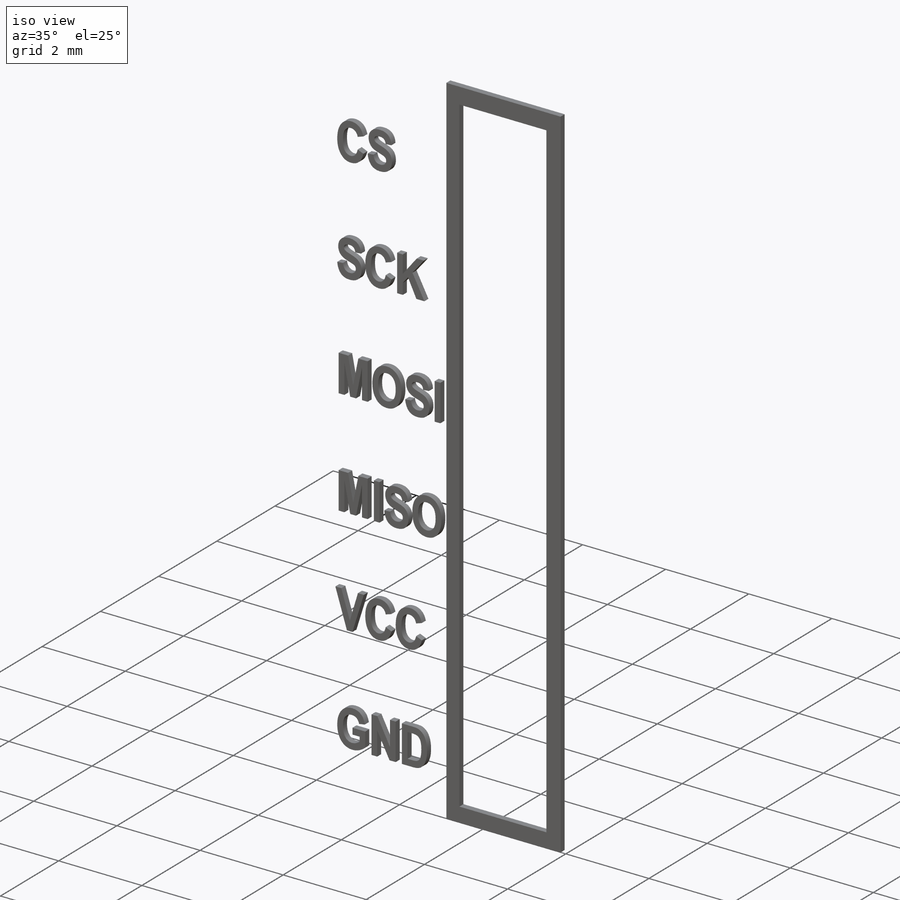
[diagram: iso view]
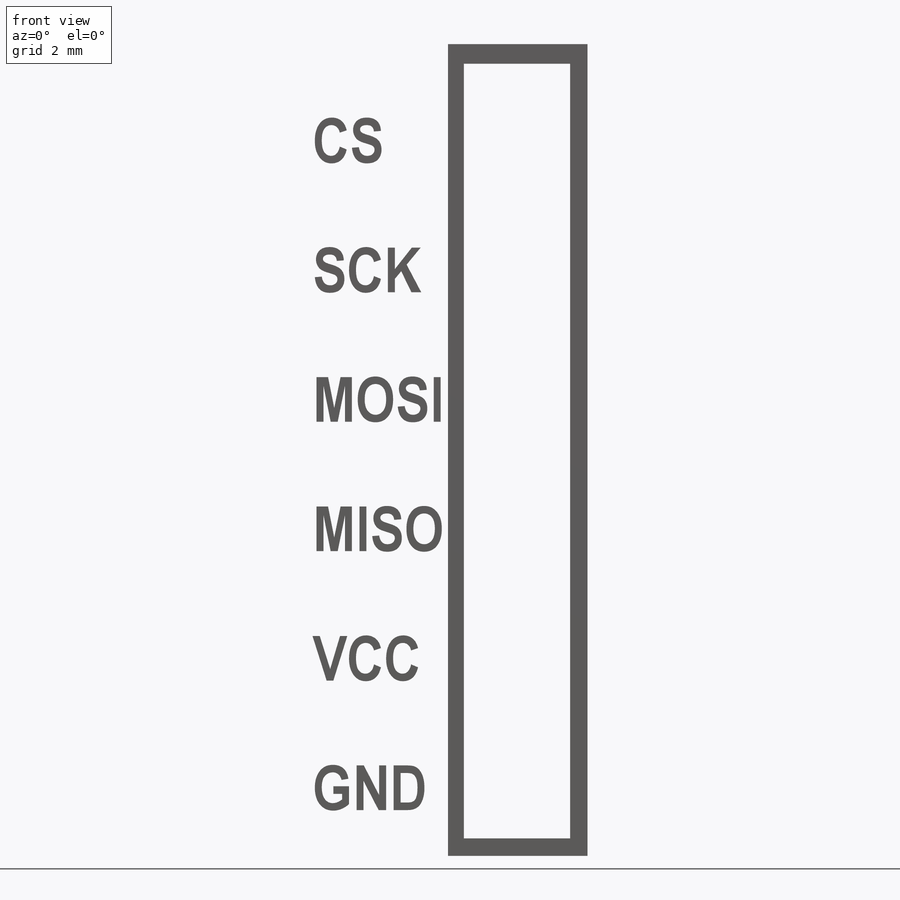
[diagram: front view]
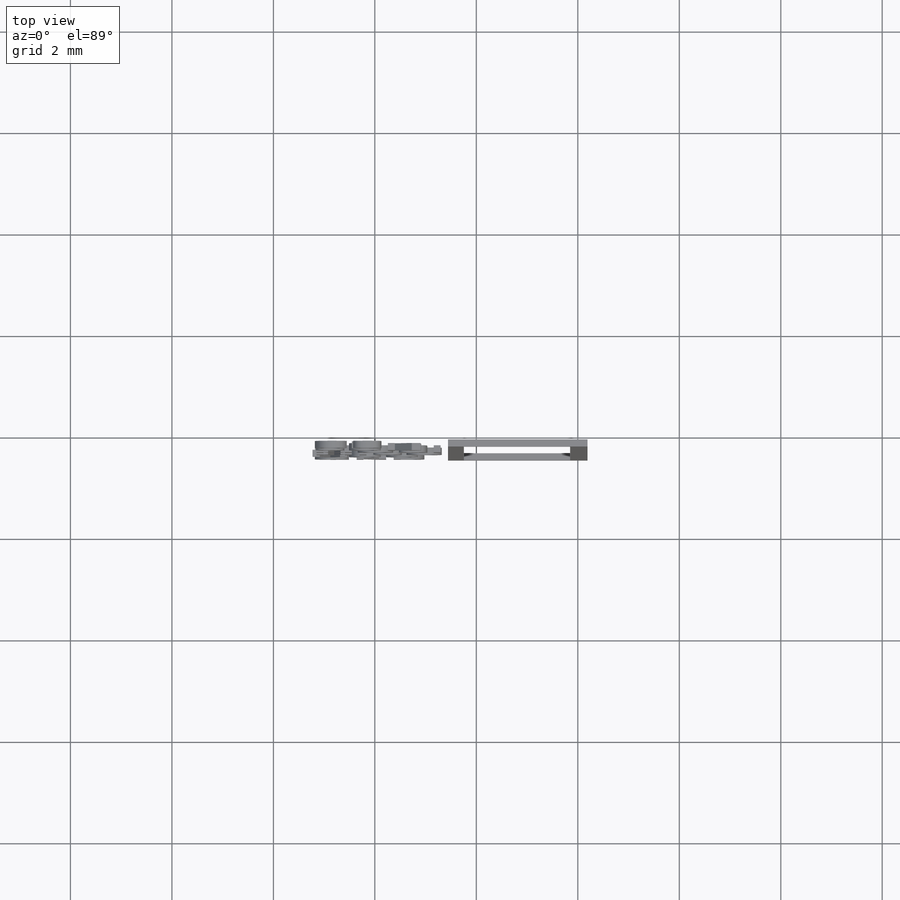
[diagram: top view]
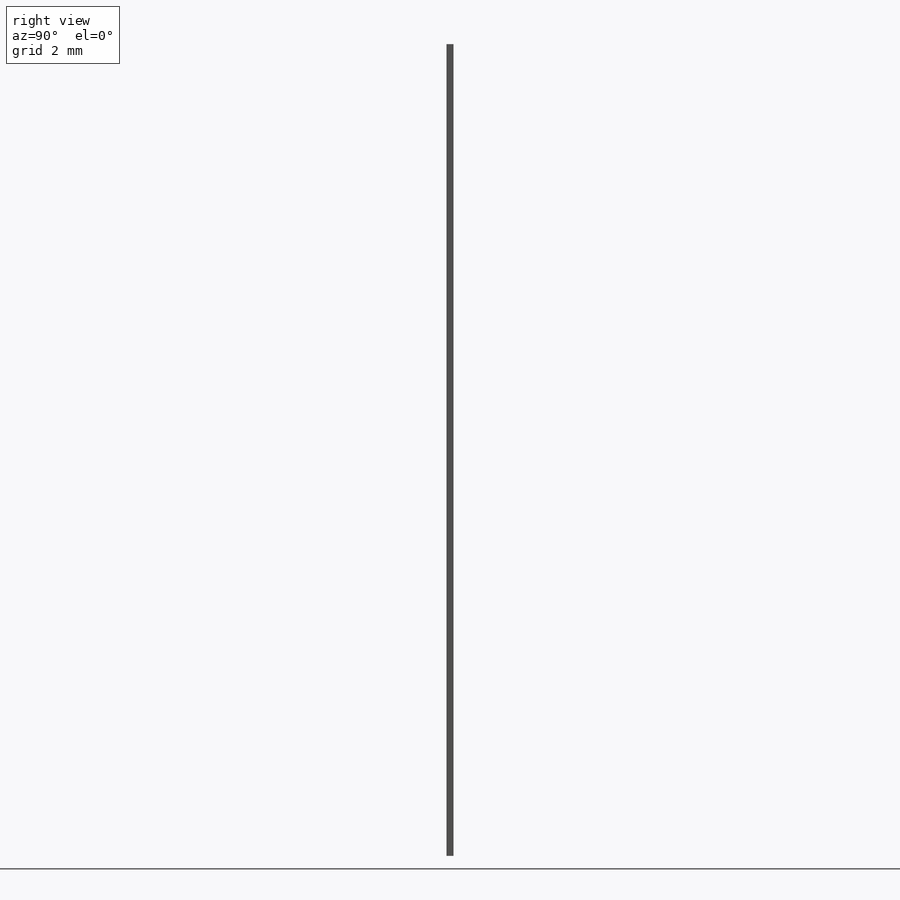
[diagram: right view]
SOLIDWORKS PART (.sldprt)
format: sldprt  version: not decoded by parser v0  size: 811,520 bytes
history: native  units: mm
features: sketch x7, extrude x5, plane x3, cut_extrude x2, material x1 (+8 scaffold rows collapsed)
feature tree (26):
  scaffold x8  (default folders/planes/origin — collapsed)
  material  "Matériau <non spécifié>"
  plane  "Plan de face"
  plane  "Plan de dessus"
  plane  "Plan de droite"
  sketch  "Esquisse2"  dims[c1.D3=1.0mm c1.D4=1.0mm c1.D5=1.0mm c1.D6=1.0mm c1.D1=16.0mm c1.D2=5.5mm c2.D3=1.5mm c2.D4=1.0mm c2.D5=1.65mm c2.D6=1.65mm c3.D4=7.0]
  extrude  "Boss.-Extru.1"  Depth=0.3mm
  sketch  "Esquisse3"
  extrude  "Boss.-Extru.2"  Depth=0.15mm
  sketch  "Esquisse7"
  extrude  "Boss.-Extru.6"  Depth=0.3mm
  sketch  "Esquisse8"
  cut_extrude  "Enlèv. mat.-Extru.2"  Depth=44.3mm
  sketch  "Esquisse9"
  extrude  "Boss.-Extru.7"  Depth=0.15mm
  sketch  "Esquisse10"
  extrude  "Boss.-Extru.8"  Depth=0.3mm
  sketch  "Esquisse11"
  cut_extrude  "Enlèv. mat.-Extru.3"  Depth=23mm
decode coverage: 8 of 14 modeling features carry decoded parameters
note: suppression state not decoded; provenance and decode notes live in map.json
